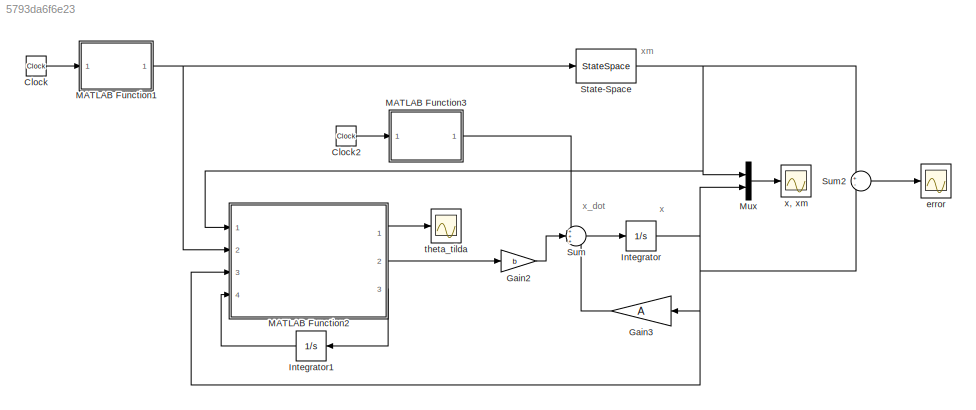
MODEL slx_5793da6f6e23
KIND model
CONFIG AbsTol = auto
CONFIG EnableMultiTasking = off
CONFIG FixedStep = auto
CONFIG InitFcn = a0 = 2;\na1 = -5;\nb0 = 5;\nA = [0 1; -a0 -a1];\nb = [0; b0];\n\nam0 = 64;\nam1 = 16;\nAm = [0 1; -am0 -am1];\nbm = [0; am0];\n\ntheta1 = (a0 - am0)/b0;\ntheta2 = (a1 - am1)/b0;\nkappa = b0/am0;\n\nQ = eye(2);\nP = lyap(Am', Q);
CONFIG MaxStep = 0.01
CONFIG MinStep = auto
CONFIG RelTol = 1e-3
CONFIG SampleTimeConstraint = Unconstrained
CONFIG SolverName = VariableStepAuto
CONFIG StartTime = 0.0
CONFIG StopTime = 30
BLOCK [Clock] Clock
BLOCK [Clock] Clock2
BLOCK [Gain] Gain2
  Gain = b
  Multiplication = Matrix(K*u)
BLOCK [Gain] Gain3
  Gain = A
  Multiplication = Matrix(K*u)
  NameLocation = top
BLOCK [Integrator] Integrator
  InitialCondition = [0; 0]
  Ports = [1, 1]
BLOCK [Integrator] Integrator1
  InitialCondition = [0; 0]
  NameLocation = top
  Ports = [1, 1]
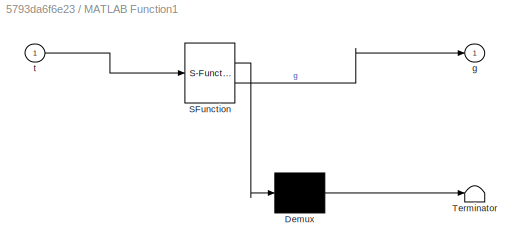
BLOCK [SubSystem] MATLAB Function1
  ErrorFcn = Stateflow.Translate.translate
  PermitHierarchicalResolution = ExplicitOnly
  Ports = [1, 1]
  RequestExecContextInheritance = off
  SFBlockType = MATLAB Function
  TreatAsAtomicUnit = on
BLOCK [Demux] MATLAB Function1/ Demux 
  Outputs = 1
  Ports = [1, 1]
BLOCK [S-Function] MATLAB Function1/ SFunction 
  EnableBusSupport = on
  FunctionName = sf_sfun
  PortCounts = [1 2]
  Ports = [1, 2]
  SFcnIsStateOwnerBlock = off
  SFunctionDeploymentMode = off
  Tag = Stateflow S-Function 1
BLOCK [Terminator] MATLAB Function1/ Terminator 
BLOCK [Outport] MATLAB Function1/g
BLOCK [Inport] MATLAB Function1/t
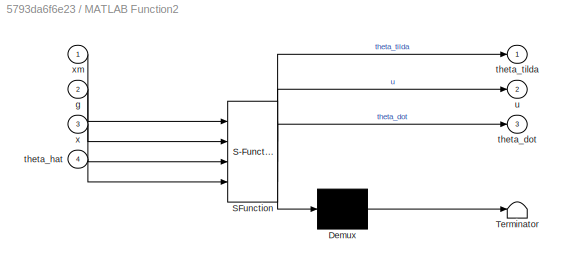
BLOCK [SubSystem] MATLAB Function2
  ErrorFcn = Stateflow.Translate.translate
  PermitHierarchicalResolution = ExplicitOnly
  Ports = [4, 3]
  RequestExecContextInheritance = off
  SFBlockType = MATLAB Function
  TreatAsAtomicUnit = on
BLOCK [Demux] MATLAB Function2/ Demux 
  Outputs = 1
  Ports = [1, 1]
BLOCK [S-Function] MATLAB Function2/ SFunction 
  EnableBusSupport = on
  FunctionName = sf_sfun
  Parameters = P,b,kappa,theta1,theta2
  PortCounts = [4 4]
  Ports = [4, 4]
  SFcnIsStateOwnerBlock = off
  SFunctionDeploymentMode = off
  Tag = Stateflow S-Function 2
BLOCK [Terminator] MATLAB Function2/ Terminator 
BLOCK [Inport] MATLAB Function2/g
  Port = 2
BLOCK [Outport] MATLAB Function2/theta_dot
  Port = 3
BLOCK [Inport] MATLAB Function2/theta_hat
  Port = 4
BLOCK [Outport] MATLAB Function2/theta_tilda
BLOCK [Outport] MATLAB Function2/u
  Port = 2
BLOCK [Inport] MATLAB Function2/x
  Port = 3
BLOCK [Inport] MATLAB Function2/xm
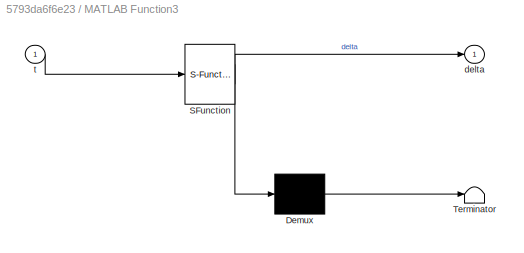
BLOCK [SubSystem] MATLAB Function3
  ErrorFcn = Stateflow.Translate.translate
  PermitHierarchicalResolution = ExplicitOnly
  Ports = [1, 1]
  RequestExecContextInheritance = off
  SFBlockType = MATLAB Function
  TreatAsAtomicUnit = on
BLOCK [Demux] MATLAB Function3/ Demux 
  Outputs = 1
  Ports = [1, 1]
BLOCK [S-Function] MATLAB Function3/ SFunction 
  EnableBusSupport = on
  FunctionName = sf_sfun
  PortCounts = [1 2]
  Ports = [1, 2]
  SFcnIsStateOwnerBlock = off
  SFunctionDeploymentMode = off
  Tag = Stateflow S-Function 3
BLOCK [Terminator] MATLAB Function3/ Terminator 
BLOCK [Outport] MATLAB Function3/delta
BLOCK [Inport] MATLAB Function3/t
BLOCK [Mux] Mux
  DisplayOption = bar
  Inputs = 2
  Ports = [2, 1]
BLOCK [StateSpace] State-Space
  A = Am
  B = bm
  C = eye(2)
  D = [0; 0]
  InitialCondition = [0; 0]
  Ports = [1, 1]
BLOCK [Sum] Sum
  Inputs = +++
  Ports = [3, 1]
BLOCK [Sum] Sum2
  Inputs = +-
  Ports = [2, 1]
BLOCK [Scope] error
  Floating = off
  NumInputPorts = 1
  Ports = [1]
  ScopeSpecificationString = Simulink.scopes.TimeScopeBlockCfg('CurrentConfiguration', extmgr.ConfigurationSet(extmgr.Configuration('Core','General UI',true,'FigureColor',[0.8 0.8 0.8]),extmgr.Configuration('Core','Source UI',true),extmgr.Configuration('Sources','WiredSimulink',true,'DataLoggingVariableName','ScopeData1'),extmgr.Configuration('Visuals','Time Domain',true,'SerializedDisplays',{struct('MinYLimReal','-3.72834','...<+1538ch>
BLOCK [Scope] theta_tilda
  Floating = off
  NumInputPorts = 1
  Ports = [1]
  ScopeSpecificationString = Simulink.scopes.TimeScopeBlockCfg('CurrentConfiguration', extmgr.ConfigurationSet(extmgr.Configuration('Core','General UI',true,'FigureColor',[0.8 0.8 0.8]),extmgr.Configuration('Core','Source UI',true),extmgr.Configuration('Sources','WiredSimulink',true,'DataLoggingVariableName','ScopeData2'),extmgr.Configuration('Visuals','Time Domain',true,'SerializedDisplays',{struct('MinYLimReal','-15.2843','...<+1588ch>
BLOCK [Scope] x, xm
  Floating = off
  NumInputPorts = 1
  Ports = [1]
  ScopeSpecificationString = Simulink.scopes.TimeScopeBlockCfg('CurrentConfiguration', extmgr.ConfigurationSet(extmgr.Configuration('Core','General UI',true),extmgr.Configuration('Core','Source UI',true),extmgr.Configuration('Sources','WiredSimulink',true,'DataLoggingVariableName','ScopeData1'),extmgr.Configuration('Visuals','Time Domain',true,'SerializedDisplays',{struct('MinYLimReal','-16.10667','MaxYLimReal','75.08384','YL...<+1420ch>
ANNOTATION (root): x
ANNOTATION (root): x_dot
ANNOTATION (root): xm
LINE Clock2:1 -> MATLAB Function3:1
LINE Clock:1 -> MATLAB Function1:1
LINE Gain2:1 -> Sum:2
LINE Gain3:1 -> Sum:3
LINE Integrator1:1 -> MATLAB Function2:4
NET Integrator:1 -> Gain3:1, MATLAB Function2:3, Mux:2, Sum2:2
NET MATLAB Function1:1 -> MATLAB Function2:2, State-Space:1
LINE MATLAB Function2:1 -> theta_tilda:1
LINE MATLAB Function2:2 -> Gain2:1
LINE MATLAB Function2:3 -> Integrator1:1
LINE MATLAB Function3:1 -> Sum:1
LINE Mux:1 -> x, xm:1
NET State-Space:1 -> MATLAB Function2:1, Mux:1, Sum2:1
LINE Sum2:1 -> error:1
LINE Sum:1 -> Integrator:1
note: NET lines group one-source signal fan-out (src -> all destinations, sorted); 1:1 wires keep LINE
CHART MATLAB Function1 states=1 transitions=1
  STATE_LABEL 'eML_blk_kernel()'
  STATE_LABEL 'SCRIPT:\nfunction g = fcn(t)\n\ng = 10*cos(0.5*t) + 2*sin(t) + 12;\n'
CHART MATLAB Function2 states=1 transitions=1
  STATE_LABEL 'eML_blk_kernel()'
  STATE_LABEL "SCRIPT:\nfunction [theta_tilda, u, theta_dot] = fcn(xm, g, x, theta1, theta2, P, kappa, b, theta_hat)\n\ntheta = [theta1; theta2];\nsigma = 1;\ngamma = 100;\ne = xm - x;\ntheta_dot = -sigma*theta_hat + gamma*x*b'*P*e;\nu = theta_hat'*x + g/kappa;\ntheta_tilda = theta - theta_hat;"
CHART MATLAB Function3 states=1 transitions=1
  STATE_LABEL 'eML_blk_kernel()'
  STATE_LABEL 'SCRIPT:\nfunction delta = fcn(t)\n\ndelta = [0.6*sin(10*t) + 0.1*sin(50*t); 0.5*cos(12*t) + 0.2*sin(30*t)];\n'
CHART  states=0 transitions=0
CHART  states=0 transitions=0
CHART  states=0 transitions=0
